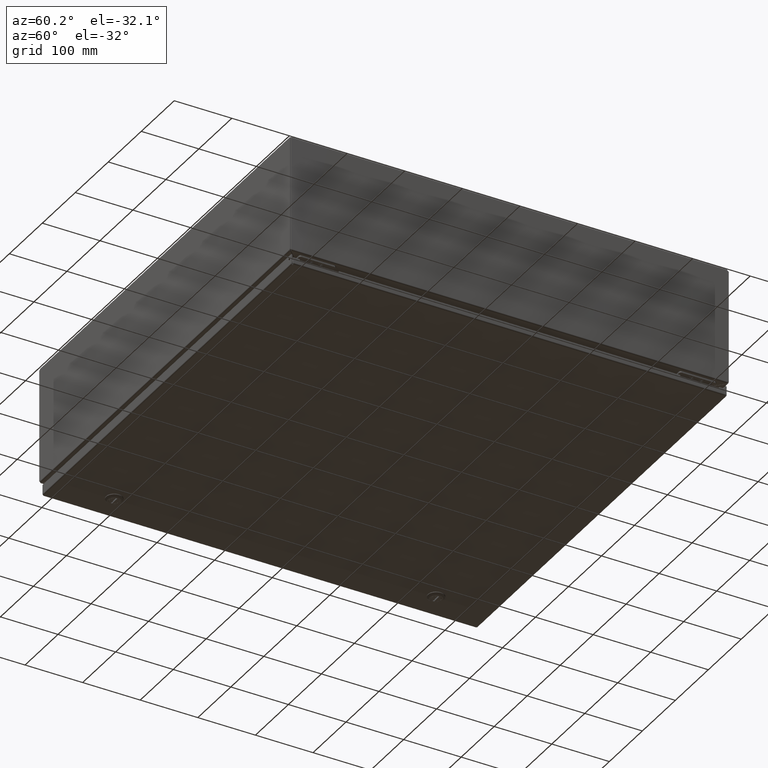
[diagram: clean part render]
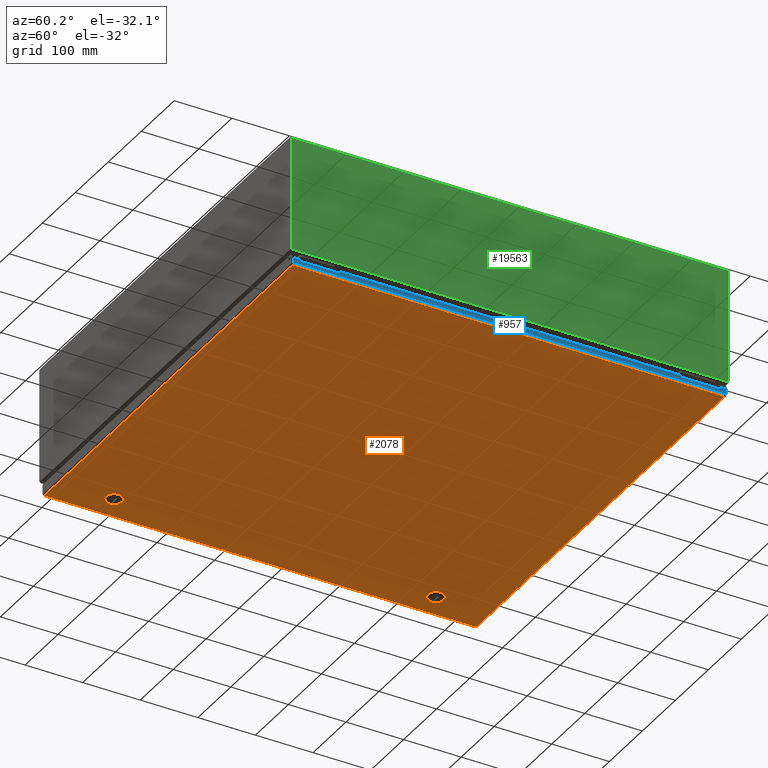
[diagram: same view with three faces highlighted in distinct colors, each labeled with its STEP entity id]
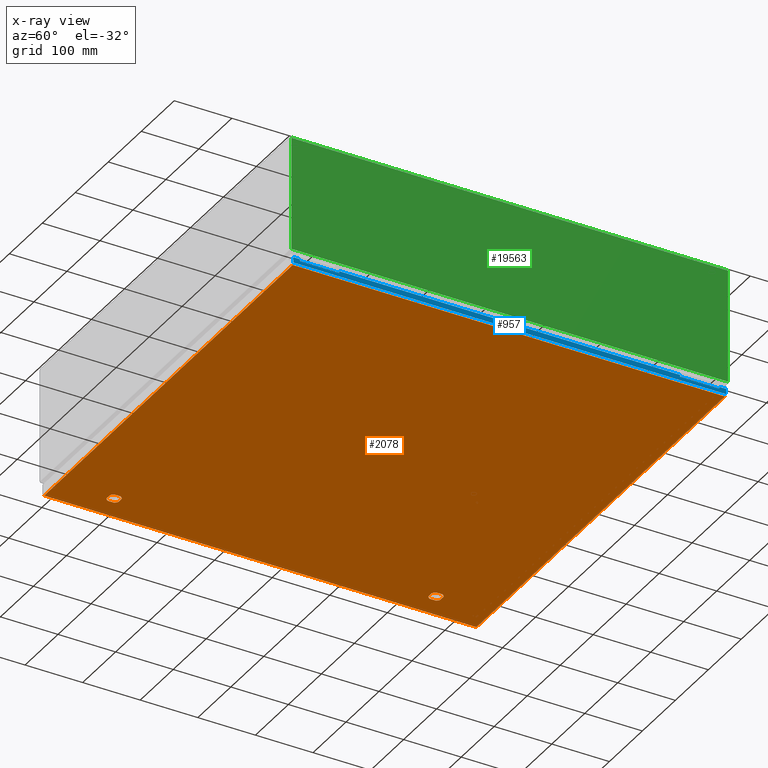
[diagram: x-ray of the same camera — body ghosted, the three highlighted faces saturated]
A machine part, auxiliary view with three faces highlighted in distinct colors.
The next image is the same camera in x-ray (body ghosted, the three faces saturated) — at least one of them is partly hidden behind the body in this view.
Their STEP definitions:

[orange] entity #2078 — the highlighted planar face has unit normal (0, 0, 1).
#135=CARTESIAN_POINT('',(2.087624081420722,4.274999999999987,0.0));
#136=VERTEX_POINT('',#135);
#143=CARTESIAN_POINT('',(2.274999999999991,4.087624081420714,0.0));
#144=VERTEX_POINT('',#143);
#145=CARTESIAN_POINT('',(1.874999999999996,3.874999999999996,0.0));
#146=DIRECTION('',(0.0,0.0,1.000000000000000));
#147=DIRECTION('',(-0.469368833158337,-0.883002207505497,0.0));
#148=AXIS2_PLACEMENT_3D('',#145,#146,#147);
#149=CIRCLE('',#148,0.453000000000000);
#150=EDGE_CURVE('',#144,#136,#149,.T.);
#175=CARTESIAN_POINT('',(2.274999999999991,3.662375918579279,0.0));
#176=VERTEX_POINT('',#175);
#177=CARTESIAN_POINT('',(2.274999999999992,3.662375918579280,0.0));
#178=DIRECTION('',(0.0,1.0,0.0));
#179=VECTOR('',#178,0.425248162841434);
#180=LINE('',#177,#179);
#181=EDGE_CURVE('',#176,#144,#180,.T.);
#207=CARTESIAN_POINT('',(2.087624081420683,3.474999999999985,0.0));
#208=VERTEX_POINT('',#207);
#209=CARTESIAN_POINT('',(1.874999999999996,3.874999999999996,0.0));
#210=DIRECTION('',(0.0,0.0,1.0));
#211=DIRECTION('',(-0.883002207505508,0.469368833158317,0.0));
#212=AXIS2_PLACEMENT_3D('',#209,#210,#211);
#213=CIRCLE('',#212,0.453000000000000);
#214=EDGE_CURVE('',#208,#176,#213,.T.);
#239=CARTESIAN_POINT('',(1.662375918579309,3.474999999999985,0.0));
#240=VERTEX_POINT('',#239);
#241=CARTESIAN_POINT('',(1.662375918579309,3.474999999999985,0.0));
#242=DIRECTION('',(1.0,0.0,0.0));
#243=VECTOR('',#242,0.425248162841375);
#244=LINE('',#241,#243);
#245=EDGE_CURVE('',#240,#208,#244,.T.);
#271=CARTESIAN_POINT('',(1.475000000000001,3.662375918579279,0.0));
#272=VERTEX_POINT('',#271);
#273=CARTESIAN_POINT('',(1.874999999999996,3.874999999999996,0.0));
#274=DIRECTION('',(0.0,0.0,1.000000000000000));
#275=DIRECTION('',(0.469368833158250,0.883002207505544,0.0));
#276=AXIS2_PLACEMENT_3D('',#273,#274,#275);
#277=CIRCLE('',#276,0.453000000000000);
#278=EDGE_CURVE('',#272,#240,#277,.T.);
#303=CARTESIAN_POINT('',(1.475000000000001,4.087624081420714,0.0));
#304=VERTEX_POINT('',#303);
#305=CARTESIAN_POINT('',(1.475000000000002,4.087624081420715,0.0));
#306=DIRECTION('',(0.0,-1.0,0.0));
#307=VECTOR('',#306,0.425248162841435);
#308=LINE('',#305,#307);
#309=EDGE_CURVE('',#304,#272,#308,.T.);
#335=CARTESIAN_POINT('',(1.662375918579269,4.274999999999987,0.0));
#336=VERTEX_POINT('',#335);
#337=CARTESIAN_POINT('',(1.874999999999996,3.874999999999996,0.0));
#338=DIRECTION('',(0.0,0.0,1.0));
#339=DIRECTION('',(0.883002207505508,-0.469368833158317,0.0));
#340=AXIS2_PLACEMENT_3D('',#337,#338,#339);
#341=CIRCLE('',#340,0.453000000000000);
#342=EDGE_CURVE('',#336,#304,#341,.T.);
#365=CARTESIAN_POINT('',(2.087624081420722,4.274999999999986,0.0));
#366=DIRECTION('',(-1.0,0.0,0.0));
#367=VECTOR('',#366,0.425248162841453);
#368=LINE('',#365,#367);
#369=EDGE_CURVE('',#136,#336,#368,.T.);
#391=CARTESIAN_POINT('',(2.087624081420700,26.274999999999995,0.0));
#392=VERTEX_POINT('',#391);
#399=CARTESIAN_POINT('',(2.274999999999992,26.087624081420710,0.0));
#400=VERTEX_POINT('',#399);
#401=CARTESIAN_POINT('',(1.874999999999996,25.874999999999993,0.0));
#402=DIRECTION('',(0.0,0.0,1.0));
#403=DIRECTION('',(-0.469368833158288,-0.883002207505523,0.0));
#404=AXIS2_PLACEMENT_3D('',#401,#402,#403);
#405=CIRCLE('',#404,0.453000000000000);
#406=EDGE_CURVE('',#400,#392,#405,.T.);
#431=CARTESIAN_POINT('',(2.274999999999992,25.662375918579279,0.0));
#432=VERTEX_POINT('',#431);
#433=CARTESIAN_POINT('',(2.274999999999992,25.662375918579279,0.0));
#434=DIRECTION('',(0.0,1.0,0.0));
#435=VECTOR('',#434,0.425248162841427);
#436=LINE('',#433,#435);
#437=EDGE_CURVE('',#432,#400,#436,.T.);
#463=CARTESIAN_POINT('',(2.087624081420711,25.474999999999998,0.0));
#464=VERTEX_POINT('',#463);
#465=CARTESIAN_POINT('',(1.874999999999996,25.874999999999993,0.0));
#466=DIRECTION('',(0.0,0.0,1.0));
#467=DIRECTION('',(-0.883002207505511,0.469368833158312,0.0));
#468=AXIS2_PLACEMENT_3D('',#465,#466,#467);
#469=CIRCLE('',#468,0.453000000000000);
#470=EDGE_CURVE('',#464,#432,#469,.T.);
#495=CARTESIAN_POINT('',(1.662375918579281,25.474999999999998,0.0));
#496=VERTEX_POINT('',#495);
#497=CARTESIAN_POINT('',(1.662375918579281,25.474999999999998,0.0));
#498=DIRECTION('',(1.0,0.0,0.0));
#499=VECTOR('',#498,0.425248162841431);
#500=LINE('',#497,#499);
#501=EDGE_CURVE('',#496,#464,#500,.T.);
#527=CARTESIAN_POINT('',(1.474999999999992,25.662375918579290,0.0));
#528=VERTEX_POINT('',#527);
#529=CARTESIAN_POINT('',(1.874999999999996,25.874999999999993,0.0));
#530=DIRECTION('',(0.0,0.0,1.0));
#531=DIRECTION('',(0.469368833158311,0.883002207505511,0.0));
#532=AXIS2_PLACEMENT_3D('',#529,#530,#531);
#533=CIRCLE('',#532,0.453000000000000);
#534=EDGE_CURVE('',#528,#496,#533,.T.);
#559=CARTESIAN_POINT('',(1.474999999999992,26.087624081420699,0.0));
#560=VERTEX_POINT('',#559);
#561=CARTESIAN_POINT('',(1.474999999999993,26.087624081420699,0.0));
#562=DIRECTION('',(0.0,-1.0,0.0));
#563=VECTOR('',#562,0.425248162841410);
#564=LINE('',#561,#563);
#565=EDGE_CURVE('',#560,#528,#564,.T.);
#591=CARTESIAN_POINT('',(1.662375918579291,26.274999999999995,0.0));
#592=VERTEX_POINT('',#591);
#593=CARTESIAN_POINT('',(1.874999999999996,25.874999999999993,0.0));
#594=DIRECTION('',(0.0,0.0,1.0));
#595=DIRECTION('',(0.883002207505524,-0.469368833158286,0.0));
#596=AXIS2_PLACEMENT_3D('',#593,#594,#595);
#597=CIRCLE('',#596,0.453000000000000);
#598=EDGE_CURVE('',#592,#560,#597,.T.);
#621=CARTESIAN_POINT('',(2.087624081420700,26.274999999999995,0.0));
#622=DIRECTION('',(-1.0,0.0,0.0));
#623=VECTOR('',#622,0.425248162841409);
#624=LINE('',#621,#623);
#625=EDGE_CURVE('',#392,#592,#624,.T.);
#1076=CARTESIAN_POINT('',(29.769750000000002,0.105250000000001,-2.185478E-017));
#1077=VERTEX_POINT('',#1076);
#1088=CARTESIAN_POINT('',(29.769749999999998,29.644750000000013,-1.092739E-017));
#1089=VERTEX_POINT('',#1088);
#1090=CARTESIAN_POINT('',(29.769749999999991,29.644750000000013,0.0));
#1091=DIRECTION('',(0.0,-1.0,0.0));
#1092=VECTOR('',#1091,29.539500000000011);
#1093=LINE('',#1090,#1092);
#1094=EDGE_CURVE('',#1089,#1077,#1093,.T.);
#1246=CARTESIAN_POINT('',(0.105250000000006,0.105250000000007,-1.092739E-017));
#1247=VERTEX_POINT('',#1246);
#1258=CARTESIAN_POINT('',(29.769750000000002,0.105250000000001,0.0));
#1259=DIRECTION('',(-1.0,0.0,0.0));
#1260=VECTOR('',#1259,29.664499999999997);
#1261=LINE('',#1258,#1260);
#1262=EDGE_CURVE('',#1077,#1247,#1261,.T.);
#1523=CARTESIAN_POINT('',(0.105249999999987,29.644750000000013,-1.092739E-017));
#1524=VERTEX_POINT('',#1523);
#1535=CARTESIAN_POINT('',(0.105250000000006,0.105250000000007,0.0));
#1536=DIRECTION('',(0.0,1.0,0.0));
#1537=VECTOR('',#1536,29.539500000000004);
#1538=LINE('',#1535,#1537);
#1539=EDGE_CURVE('',#1247,#1524,#1538,.T.);
#1804=CARTESIAN_POINT('',(0.105249999999987,29.644750000000013,0.0));
#1805=DIRECTION('',(1.0,0.0,0.0));
#1806=VECTOR('',#1805,29.664500000000015);
#1807=LINE('',#1804,#1806);
#1808=EDGE_CURVE('',#1524,#1089,#1807,.T.);
#2047=CARTESIAN_POINT('',(14.937499999999995,14.875000000000005,0.0));
#2048=DIRECTION('',(0.0,0.0,1.0));
#2049=DIRECTION('',(1.0,0.0,0.0));
#2050=AXIS2_PLACEMENT_3D('',#2047,#2048,#2049);
#2051=PLANE('',#2050);
#2052=ORIENTED_EDGE('',*,*,#1094,.T.);
#2053=ORIENTED_EDGE('',*,*,#1262,.T.);
#2054=ORIENTED_EDGE('',*,*,#1539,.T.);
#2055=ORIENTED_EDGE('',*,*,#1808,.T.);
#2056=EDGE_LOOP('',(#2052,#2053,#2054,#2055));
#2057=FACE_OUTER_BOUND('',#2056,.T.);
#2058=ORIENTED_EDGE('',*,*,#150,.T.);
#2059=ORIENTED_EDGE('',*,*,#369,.T.);
#2060=ORIENTED_EDGE('',*,*,#342,.T.);
#2061=ORIENTED_EDGE('',*,*,#309,.T.);
#2062=ORIENTED_EDGE('',*,*,#278,.T.);
#2063=ORIENTED_EDGE('',*,*,#245,.T.);
#2064=ORIENTED_EDGE('',*,*,#214,.T.);
#2065=ORIENTED_EDGE('',*,*,#181,.T.);
#2066=EDGE_LOOP('',(#2058,#2059,#2060,#2061,#2062,#2063,#2064,#2065));
#2067=FACE_BOUND('',#2066,.T.);
#2068=ORIENTED_EDGE('',*,*,#406,.T.);
#2069=ORIENTED_EDGE('',*,*,#625,.T.);
#2070=ORIENTED_EDGE('',*,*,#598,.T.);
#2071=ORIENTED_EDGE('',*,*,#565,.T.);
#2072=ORIENTED_EDGE('',*,*,#534,.T.);
#2073=ORIENTED_EDGE('',*,*,#501,.T.);
#2074=ORIENTED_EDGE('',*,*,#470,.T.);
#2075=ORIENTED_EDGE('',*,*,#437,.T.);
#2076=EDGE_LOOP('',(#2068,#2069,#2070,#2071,#2072,#2073,#2074,#2075));
#2077=FACE_BOUND('',#2076,.T.);
#2078=ADVANCED_FACE('',(#2057,#2067,#2077),#2051,.F.);

[blue] entity #957 — the highlighted planar face has unit normal (-1, 0, 0).
#646=CARTESIAN_POINT('',(29.874999999999975,0.085048543456047,0.480000000000027));
#647=VERTEX_POINT('',#646);
#654=CARTESIAN_POINT('',(29.874999999999975,0.532000000000007,0.480000000000021));
#655=VERTEX_POINT('',#654);
#656=CARTESIAN_POINT('',(29.874999999999975,0.532000000000006,0.480000000000021));
#657=DIRECTION('',(0.0,-1.0,0.0));
#658=VECTOR('',#657,0.446951456543959);
#659=LINE('',#656,#658);
#660=EDGE_CURVE('',#655,#647,#659,.T.);
#685=CARTESIAN_POINT('',(29.874999999999982,0.532000000000007,0.355000000000021));
#686=VERTEX_POINT('',#685);
#687=CARTESIAN_POINT('',(29.874999999999979,0.532000000000007,0.355000000000021));
#688=DIRECTION('',(0.0,0.0,1.0));
#689=VECTOR('',#688,0.125000000000000);
#690=LINE('',#687,#689);
#691=EDGE_CURVE('',#686,#655,#690,.T.);
#716=CARTESIAN_POINT('',(29.874999999999982,3.219000000000007,0.355000000000020));
#717=VERTEX_POINT('',#716);
#718=CARTESIAN_POINT('',(29.874999999999979,3.219000000000007,0.355000000000020));
#719=DIRECTION('',(0.0,-1.0,0.0));
#720=VECTOR('',#719,2.687000000000001);
#721=LINE('',#718,#720);
#722=EDGE_CURVE('',#717,#686,#721,.T.);
#747=CARTESIAN_POINT('',(29.874999999999975,3.219000000000007,0.480000000000020));
#748=VERTEX_POINT('',#747);
#749=CARTESIAN_POINT('',(29.874999999999972,3.219000000000008,0.480000000000020));
#750=DIRECTION('',(0.0,0.0,-1.0));
#751=VECTOR('',#750,0.125000000000000);
#752=LINE('',#749,#751);
#753=EDGE_CURVE('',#748,#717,#752,.T.);
#778=CARTESIAN_POINT('',(29.874999999999964,26.530999999999995,0.480000000000028));
#779=VERTEX_POINT('',#778);
#780=CARTESIAN_POINT('',(29.874999999999961,26.530999999999995,0.480000000000028));
#781=DIRECTION('',(0.0,-1.0,0.0));
#782=VECTOR('',#781,23.311999999999987);
#783=LINE('',#780,#782);
#784=EDGE_CURVE('',#779,#748,#783,.T.);
#809=CARTESIAN_POINT('',(29.874999999999972,26.530999999999995,0.355000000000024));
#810=VERTEX_POINT('',#809);
#811=CARTESIAN_POINT('',(29.874999999999964,26.530999999999995,0.355000000000024));
#812=DIRECTION('',(0.0,0.0,1.0));
#813=VECTOR('',#812,0.125000000000004);
#814=LINE('',#811,#813);
#815=EDGE_CURVE('',#810,#779,#814,.T.);
#840=CARTESIAN_POINT('',(29.874999999999964,29.217999999999993,0.355000000000024));
#841=VERTEX_POINT('',#840);
#842=CARTESIAN_POINT('',(29.874999999999968,29.217999999999993,0.355000000000024));
#843=DIRECTION('',(0.0,-1.0,0.0));
#844=VECTOR('',#843,2.686999999999998);
#845=LINE('',#842,#844);
#846=EDGE_CURVE('',#841,#810,#845,.T.);
#871=CARTESIAN_POINT('',(29.874999999999961,29.217999999999993,0.480000000000028));
#872=VERTEX_POINT('',#871);
#873=CARTESIAN_POINT('',(29.874999999999961,29.217999999999993,0.480000000000028));
#874=DIRECTION('',(0.0,0.0,-1.0));
#875=VECTOR('',#874,0.125000000000004);
#876=LINE('',#873,#875);
#877=EDGE_CURVE('',#872,#841,#876,.T.);
#902=CARTESIAN_POINT('',(29.874999999999961,29.664951456543967,0.480000000000028));
#903=VERTEX_POINT('',#902);
#904=CARTESIAN_POINT('',(29.874999999999957,29.664951456543967,0.480000000000028));
#905=DIRECTION('',(0.0,-1.0,0.0));
#906=VECTOR('',#905,0.446951456543971);
#907=LINE('',#904,#906);
#908=EDGE_CURVE('',#903,#872,#907,.T.);
#919=CARTESIAN_POINT('',(29.874999999999972,14.875000000000005,0.366568571437913));
#920=DIRECTION('',(-1.0,0.0,0.0));
#921=DIRECTION('',(0.0,0.0,1.0));
#922=AXIS2_PLACEMENT_3D('',#919,#920,#921);
#923=PLANE('',#922);
#924=ORIENTED_EDGE('',*,*,#908,.T.);
#925=ORIENTED_EDGE('',*,*,#877,.T.);
#926=ORIENTED_EDGE('',*,*,#846,.T.);
#927=ORIENTED_EDGE('',*,*,#815,.T.);
#928=ORIENTED_EDGE('',*,*,#784,.T.);
#929=ORIENTED_EDGE('',*,*,#753,.T.);
#930=ORIENTED_EDGE('',*,*,#722,.T.);
#931=ORIENTED_EDGE('',*,*,#691,.T.);
#932=ORIENTED_EDGE('',*,*,#660,.T.);
#933=CARTESIAN_POINT('',(29.874999999999989,0.085048543456046,0.105250000000023));
#934=VERTEX_POINT('',#933);
#935=CARTESIAN_POINT('',(29.874999999999993,0.085048543456047,0.105250000000029));
#936=DIRECTION('',(0.0,0.0,1.0));
#937=VECTOR('',#936,0.374749999999998);
#938=LINE('',#935,#937);
#939=EDGE_CURVE('',#934,#647,#938,.T.);
#940=ORIENTED_EDGE('',*,*,#939,.F.);
#941=CARTESIAN_POINT('',(29.874999999999972,29.664951456543960,0.105250000000012));
#942=VERTEX_POINT('',#941);
#943=CARTESIAN_POINT('',(29.874999999999989,0.085048543456043,0.105250000000007));
#944=DIRECTION('',(0.0,1.0,0.0));
#945=VECTOR('',#944,29.579902913087917);
#946=LINE('',#943,#945);
#947=EDGE_CURVE('',#934,#942,#946,.T.);
#948=ORIENTED_EDGE('',*,*,#947,.T.);
#949=CARTESIAN_POINT('',(29.874999999999957,29.664951456543967,0.480000000000028));
#950=DIRECTION('',(0.0,0.0,-1.0));
#951=VECTOR('',#950,0.374750000000016);
#952=LINE('',#949,#951);
#953=EDGE_CURVE('',#903,#942,#952,.T.);
#954=ORIENTED_EDGE('',*,*,#953,.F.);
#955=EDGE_LOOP('',(#924,#925,#926,#927,#928,#929,#930,#931,#932,#940,#948,#954));
#956=FACE_OUTER_BOUND('',#955,.T.);
#957=ADVANCED_FACE('',(#956),#923,.F.);

[green] entity #19563 — the highlighted planar face has unit normal (-1, -0, -0).
#18136=CARTESIAN_POINT('',(5.616679E-015,0.085048543456047,7.894750000000001));
#18137=VERTEX_POINT('',#18136);
#18166=CARTESIAN_POINT('',(-3.190798E-015,29.914951456544458,7.894750000000006));
#18167=VERTEX_POINT('',#18166);
#18181=CARTESIAN_POINT('',(5.642594E-015,0.085048543456048,7.894750000000000));
#18182=DIRECTION('',(0.0,1.0,0.0));
#18183=VECTOR('',#18182,29.829902913088407);
#18184=LINE('',#18181,#18183);
#18185=EDGE_CURVE('',#18137,#18167,#18184,.T.);
#18510=CARTESIAN_POINT('',(-3.518620E-015,29.920000000000005,7.894750000000006));
#18511=VERTEX_POINT('',#18510);
#18518=CARTESIAN_POINT('',(-3.490180E-015,29.914951456544454,7.894750000000006));
#18519=DIRECTION('',(0.0,1.0,0.0));
#18520=VECTOR('',#18519,0.005048543455551);
#18521=LINE('',#18518,#18520);
#18522=EDGE_CURVE('',#18167,#18511,#18521,.T.);
#18688=CARTESIAN_POINT('',(5.616679E-015,0.080000000000007,7.894750000000001));
#18689=VERTEX_POINT('',#18688);
#18690=CARTESIAN_POINT('',(5.644139E-015,0.080000000000007,7.894750000000000));
#18691=DIRECTION('',(0.0,1.0,0.0));
#18692=VECTOR('',#18691,0.005048543456041);
#18693=LINE('',#18690,#18692);
#18694=EDGE_CURVE('',#18689,#18137,#18693,.T.);
#18719=CARTESIAN_POINT('',(5.635555E-015,0.080000000000001,0.129782883345321));
#18720=VERTEX_POINT('',#18719);
#18721=CARTESIAN_POINT('',(6.095663E-015,0.080000000000000,7.894750000000001));
#18722=DIRECTION('',(0.0,0.0,-1.0));
#18723=VECTOR('',#18722,7.764967116654680);
#18724=LINE('',#18721,#18723);
#18725=EDGE_CURVE('',#18689,#18720,#18724,.T.);
#19451=CARTESIAN_POINT('',(-3.006592E-015,29.882766839324361,0.105250000000000));
#19452=VERTEX_POINT('',#19451);
#19459=CARTESIAN_POINT('',(-3.500310E-015,29.919999999999998,0.129782883345325));
#19460=VERTEX_POINT('',#19459);
#19461=CARTESIAN_POINT('',(-3.020839E-015,29.937891921115423,0.062108078884584));
#19462=DIRECTION('',(1.0,0.0,0.0));
#19463=DIRECTION('',(0.0,0.0,-1.0));
#19464=AXIS2_PLACEMENT_3D('',#19461,#19462,#19463);
#19465=CIRCLE('',#19464,0.070000000000000);
#19466=EDGE_CURVE('',#19460,#19452,#19465,.T.);
#19530=CARTESIAN_POINT('',(1.310873E-015,15.000000000000007,4.009483078884583));
#19531=DIRECTION('',(1.0,0.0,0.0));
#19532=DIRECTION('',(0.0,0.0,-1.0));
#19533=AXIS2_PLACEMENT_3D('',#19530,#19531,#19532);
#19534=PLANE('',#19533);
#19535=ORIENTED_EDGE('',*,*,#18694,.T.);
#19536=ORIENTED_EDGE('',*,*,#18185,.T.);
#19537=ORIENTED_EDGE('',*,*,#18522,.T.);
#19538=CARTESIAN_POINT('',(-3.041359E-015,29.920000000000005,0.129782883345325));
#19539=DIRECTION('',(0.0,0.0,1.0));
#19540=VECTOR('',#19539,7.764967116654682);
#19541=LINE('',#19538,#19540);
#19542=EDGE_CURVE('',#19460,#18511,#19541,.T.);
#19543=ORIENTED_EDGE('',*,*,#19542,.F.);
#19544=ORIENTED_EDGE('',*,*,#19466,.T.);
#19545=CARTESIAN_POINT('',(6.106474E-015,0.117233160675641,0.105250000000000));
#19546=VERTEX_POINT('',#19545);
#19547=CARTESIAN_POINT('',(-3.006603E-015,29.882766839324361,0.105250000000000));
#19548=DIRECTION('',(0.0,-1.0,0.0));
#19549=VECTOR('',#19548,29.765533678648723);
#19550=LINE('',#19547,#19549);
#19551=EDGE_CURVE('',#19452,#19546,#19550,.T.);
#19552=ORIENTED_EDGE('',*,*,#19551,.T.);
#19553=CARTESIAN_POINT('',(6.125982E-015,0.062108078884584,0.062108078884579));
#19554=DIRECTION('',(1.0,0.0,0.0));
#19555=DIRECTION('',(0.0,0.0,-1.0));
#19556=AXIS2_PLACEMENT_3D('',#19553,#19554,#19555);
#19557=CIRCLE('',#19556,0.070000000000000);
#19558=EDGE_CURVE('',#19546,#18720,#19557,.T.);
#19559=ORIENTED_EDGE('',*,*,#19558,.T.);
#19560=ORIENTED_EDGE('',*,*,#18725,.F.);
#19561=EDGE_LOOP('',(#19535,#19536,#19537,#19543,#19544,#19552,#19559,#19560));
#19562=FACE_OUTER_BOUND('',#19561,.T.);
#19563=ADVANCED_FACE('',(#19562),#19534,.F.);